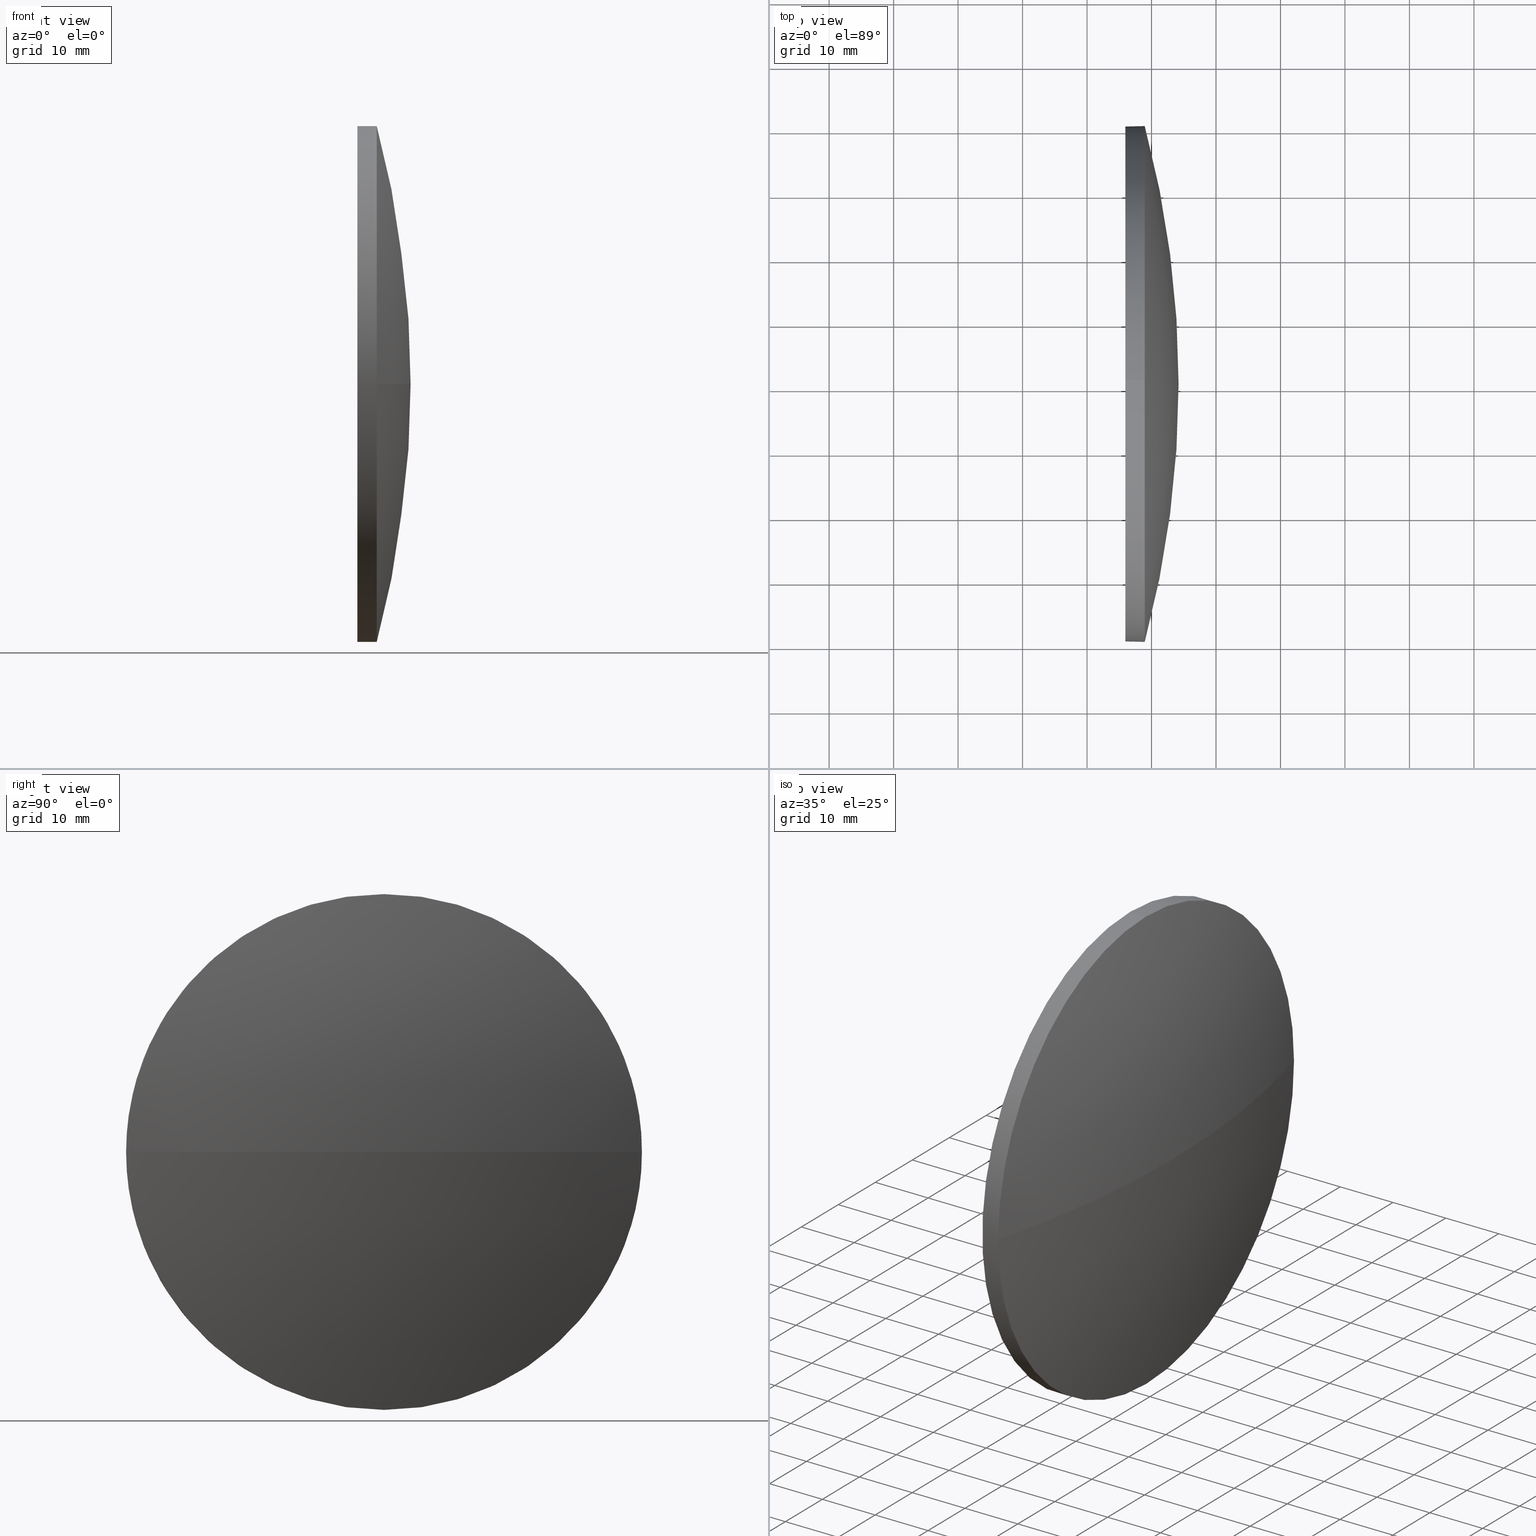
[diagram: canonical four-view strip — front | top / right | iso, engineering-drawing reading convention]
A machine part, canonical four-view strip (front | top / right | iso — engineering-drawing reading convention). The complete STEP part file that produces these views, byte-faithful:
ISO-10303-21;
HEADER;
FILE_DESCRIPTION (( 'STEP AP214' ),
    '1' );
FILE_NAME ('100165.STEP',
    '2019-05-17T02:56:49',
    ( '' ),
    ( '' ),
    'SwSTEP 2.0',
    'SolidWorks 2016',
    '' );
FILE_SCHEMA (( 'AUTOMOTIVE_DESIGN' ));
ENDSEC;

DATA;
#1 = DIRECTION ( 'NONE',  ( 0.0000000000000000000, 0.0000000000000000000, 1.000000000000000000 ) ) ;
#2 = AXIS2_PLACEMENT_3D ( 'NONE', #110, #141, #62 ) ;
#3 =( NAMED_UNIT ( * ) SI_UNIT ( $, .STERADIAN. ) SOLID_ANGLE_UNIT ( ) );
#4 = CARTESIAN_POINT ( 'NONE',  ( 225.9490942240209100, 130.4671098528244200, 0.0000000000000000000 ) ) ;
#5 = ORIENTED_EDGE ( 'NONE', *, *, #105, .T. ) ;
#6 = CARTESIAN_POINT ( 'NONE',  ( 79.19314184306821900, 130.4671098528244800, 0.0000000000000000000 ) ) ;
#7 = CLOSED_SHELL ( 'NONE', ( #92, #66, #179, #181, #91 ) ) ;
#8 = MANIFOLD_SOLID_BREP ( '��ת1', #7 ) ;
#9 = ORIENTED_EDGE ( 'NONE', *, *, #149, .T. ) ;
#10 = AXIS2_PLACEMENT_3D ( 'NONE', #29, #44, #157 ) ;
#11 =( LENGTH_UNIT ( ) NAMED_UNIT ( * ) SI_UNIT ( .MILLI., .METRE. ) );
#12 =( GEOMETRIC_REPRESENTATION_CONTEXT ( 3 ) GLOBAL_UNCERTAINTY_ASSIGNED_CONTEXT ( ( #63 ) ) GLOBAL_UNIT_ASSIGNED_CONTEXT ( ( #48, #139, #14 ) ) REPRESENTATION_CONTEXT ( 'NONE', 'WORKASPACE' ) );
#13 = DIRECTION ( 'NONE',  ( 0.0000000000000000000, 0.0000000000000000000, 1.000000000000000000 ) ) ;
#14 =( NAMED_UNIT ( * ) SI_UNIT ( $, .STERADIAN. ) SOLID_ANGLE_UNIT ( ) );
#15 = APPLICATION_PROTOCOL_DEFINITION ( 'draft international standard', 'automotive_design', 1998, #57 ) ;
#16 = CIRCLE ( 'NONE', #176, 40.00000000000000700 ) ;
#17 = DIRECTION ( 'NONE',  ( 0.0000000000000000000, -1.000000000000000000, -1.224646799147353200E-016 ) ) ;
#18 = DIRECTION ( 'NONE',  ( -1.000000000000000000, -0.0000000000000000000, -0.0000000000000000000 ) ) ;
#19 = AXIS2_PLACEMENT_3D ( 'NONE', #95, #152, #71 ) ;
#20 = STYLED_ITEM ( 'NONE', ( #124 ), #160 ) ;
#21 = UNCERTAINTY_MEASURE_WITH_UNIT (LENGTH_MEASURE( 1.000000000000000100E-005 ), #75, 'distance_accuracy_value', 'NONE');
#22 = CIRCLE ( 'NONE', #107, 40.00000000000000700 ) ;
#23 = ORIENTED_EDGE ( 'NONE', *, *, #78, .T. ) ;
#24 = SPHERICAL_SURFACE ( 'NONE', #19, 155.0059523809526600 ) ;
#25 = APPLICATION_CONTEXT ( 'automotive_design' ) ;
#26 = VERTEX_POINT ( 'NONE', #142 ) ;
#27 = DIRECTION ( 'NONE',  ( -1.000000000000000000, -0.0000000000000000000, -0.0000000000000000000 ) ) ;
#28 = SHAPE_DEFINITION_REPRESENTATION ( #134, #160 ) ;
#29 = CARTESIAN_POINT ( 'NONE',  ( 79.19314184306821900, 130.4671098528244800, 0.0000000000000000000 ) ) ;
#30 = AXIS2_PLACEMENT_3D ( 'NONE', #6, #34, #31 ) ;
#31 = DIRECTION ( 'NONE',  ( 0.0000000000000000000, -1.000000000000000000, 0.0000000000000000000 ) ) ;
#32 = FILL_AREA_STYLE ('',( #171 ) ) ;
#33 = CIRCLE ( 'NONE', #146, 40.00000000000000700 ) ;
#34 = DIRECTION ( 'NONE',  ( 0.0000000000000000000, 0.0000000000000000000, 1.000000000000000000 ) ) ;
#35 = EDGE_CURVE ( 'NONE', #150, #81, #65, .T. ) ;
#36 = DIRECTION ( 'NONE',  ( -1.000000000000000000, -0.0000000000000000000, -0.0000000000000000000 ) ) ;
#37 = ORIENTED_EDGE ( 'NONE', *, *, #164, .F. ) ;
#38 = DIRECTION ( 'NONE',  ( -1.000000000000000000, -0.0000000000000000000, -0.0000000000000000000 ) ) ;
#39 = AXIS2_PLACEMENT_3D ( 'NONE', #186, #27, #167 ) ;
#40 = ORIENTED_EDGE ( 'NONE', *, *, #35, .T. ) ;
#41 = ORIENTED_EDGE ( 'NONE', *, *, #159, .T. ) ;
#42 = MECHANICAL_DESIGN_GEOMETRIC_PRESENTATION_REPRESENTATION (  '', ( #20 ), #56 ) ;
#43 = ORIENTED_EDGE ( 'NONE', *, *, #136, .F. ) ;
#44 = DIRECTION ( 'NONE',  ( 0.0000000000000000000, 0.0000000000000000000, -1.000000000000000000 ) ) ;
#45 = SPHERICAL_SURFACE ( 'NONE', #30, 155.0059523809526600 ) ;
#46 = CARTESIAN_POINT ( 'NONE',  ( 234.1990942240208800, 130.4671098528244800, 0.0000000000000000000 ) ) ;
#47 = AXIS2_PLACEMENT_3D ( 'NONE', #102, #36, #126 ) ;
#48 =( LENGTH_UNIT ( ) NAMED_UNIT ( * ) SI_UNIT ( .MILLI., .METRE. ) );
#49 = SURFACE_STYLE_USAGE ( .BOTH. , #130 ) ;
#50 = CARTESIAN_POINT ( 'NONE',  ( 79.19314184306821900, 130.4671098528244800, 0.0000000000000000000 ) ) ;
#51 = CARTESIAN_POINT ( 'NONE',  ( 0.0000000000000000000, 0.0000000000000000000, 0.0000000000000000000 ) ) ;
#52 = ORIENTED_EDGE ( 'NONE', *, *, #94, .F. ) ;
#53 = PRODUCT_DEFINITION ( 'δ֪', '', #69, #148 ) ;
#54 = FACE_OUTER_BOUND ( 'NONE', #147, .T. ) ;
#55 = ORIENTED_EDGE ( 'NONE', *, *, #87, .F. ) ;
#56 =( GEOMETRIC_REPRESENTATION_CONTEXT ( 3 ) GLOBAL_UNCERTAINTY_ASSIGNED_CONTEXT ( ( #172 ) ) GLOBAL_UNIT_ASSIGNED_CONTEXT ( ( #11, #118, #137 ) ) REPRESENTATION_CONTEXT ( 'NONE', 'WORKASPACE' ) );
#57 = APPLICATION_CONTEXT ( 'automotive_design' ) ;
#58 = DIRECTION ( 'NONE',  ( 0.0000000000000000000, 0.0000000000000000000, 1.000000000000000000 ) ) ;
#59 = CARTESIAN_POINT ( 'NONE',  ( 228.9490942240209100, 130.4671098528244200, 0.0000000000000000000 ) ) ;
#60 = DIRECTION ( 'NONE',  ( -1.000000000000000000, -0.0000000000000000000, -0.0000000000000000000 ) ) ;
#61 = CIRCLE ( 'NONE', #128, 40.00000000000000700 ) ;
#62 = DIRECTION ( 'NONE',  ( 0.0000000000000000000, 0.0000000000000000000, 1.000000000000000000 ) ) ;
#63 = UNCERTAINTY_MEASURE_WITH_UNIT (LENGTH_MEASURE( 1.000000000000000100E-005 ), #48, 'distance_accuracy_value', 'NONE');
#64 = AXIS2_PLACEMENT_3D ( 'NONE', #72, #138, #114 ) ;
#65 = LINE ( 'NONE', #140, #135 ) ;
#66 = ADVANCED_FACE ( 'NONE', ( #170 ), #24, .T. ) ;
#67 = EDGE_LOOP ( 'NONE', ( #89, #9, #161, #55 ) ) ;
#68 = ORIENTED_EDGE ( 'NONE', *, *, #35, .F. ) ;
#69 = PRODUCT_DEFINITION_FORMATION_WITH_SPECIFIED_SOURCE ( '�κ�', '', #111, .NOT_KNOWN. ) ;
#70 = DIRECTION ( 'NONE',  ( 0.0000000000000000000, 0.0000000000000000000, 1.000000000000000000 ) ) ;
#71 = DIRECTION ( 'NONE',  ( 0.0000000000000000000, -1.000000000000000000, 0.0000000000000000000 ) ) ;
#72 = CARTESIAN_POINT ( 'NONE',  ( 225.9490942240209100, 130.4671098528244200, 0.0000000000000000000 ) ) ;
#73 = EDGE_LOOP ( 'NONE', ( #41, #153 ) ) ;
#74 = CARTESIAN_POINT ( 'NONE',  ( 228.9490942240209100, 130.4671098528244200, -40.00000000000000700 ) ) ;
#75 =( LENGTH_UNIT ( ) NAMED_UNIT ( * ) SI_UNIT ( .MILLI., .METRE. ) );
#76 = CARTESIAN_POINT ( 'NONE',  ( 228.9490942240209100, 130.4671098528244200, 40.00000000000000700 ) ) ;
#77 = AXIS2_PLACEMENT_3D ( 'NONE', #50, #101, #17 ) ;
#78 = EDGE_CURVE ( 'NONE', #150, #145, #61, .T. ) ;
#79 = COLOUR_RGB ( '',1.000000000000000000, 1.000000000000000000, 1.000000000000000000 ) ;
#80 =( GEOMETRIC_REPRESENTATION_CONTEXT ( 3 ) GLOBAL_UNCERTAINTY_ASSIGNED_CONTEXT ( ( #21 ) ) GLOBAL_UNIT_ASSIGNED_CONTEXT ( ( #75, #173, #3 ) ) REPRESENTATION_CONTEXT ( 'NONE', 'WORKASPACE' ) );
#81 = VERTEX_POINT ( 'NONE', #117 ) ;
#82 = CIRCLE ( 'NONE', #2, 40.00000000000000700 ) ;
#83 = DIRECTION ( 'NONE',  ( -1.000000000000000000, -0.0000000000000000000, -0.0000000000000000000 ) ) ;
#84 = ORIENTED_EDGE ( 'NONE', *, *, #151, .F. ) ;
#85 = CARTESIAN_POINT ( 'NONE',  ( 228.9490942240209100, 130.4671098528244200, 0.0000000000000000000 ) ) ;
#86 = PRODUCT_RELATED_PRODUCT_CATEGORY ( 'part', '', ( #111 ) ) ;
#87 = EDGE_CURVE ( 'NONE', #125, #150, #132, .T. ) ;
#88 = FACE_OUTER_BOUND ( 'NONE', #106, .T. ) ;
#89 = ORIENTED_EDGE ( 'NONE', *, *, #105, .F. ) ;
#90 = CYLINDRICAL_SURFACE ( 'NONE', #39, 40.00000000000000700 ) ;
#91 = ADVANCED_FACE ( 'NONE', ( #93 ), #185, .F. ) ;
#92 = ADVANCED_FACE ( 'NONE', ( #54 ), #90, .T. ) ;
#93 = FACE_OUTER_BOUND ( 'NONE', #73, .T. ) ;
#94 = EDGE_CURVE ( 'NONE', #121, #125, #22, .T. ) ;
#95 = CARTESIAN_POINT ( 'NONE',  ( 79.19314184306821900, 130.4671098528244800, 0.0000000000000000000 ) ) ;
#96 = DIRECTION ( 'NONE',  ( -1.000000000000000000, -0.0000000000000000000, -0.0000000000000000000 ) ) ;
#97 = CARTESIAN_POINT ( 'NONE',  ( 228.9490942240208800, 170.4671098528244200, 4.898587196589408300E-015 ) ) ;
#98 = FILL_AREA_STYLE_COLOUR ( '', #122 ) ;
#99 = DIRECTION ( 'NONE',  ( -1.000000000000000000, -0.0000000000000000000, -0.0000000000000000000 ) ) ;
#100 = CYLINDRICAL_SURFACE ( 'NONE', #47, 40.00000000000000700 ) ;
#101 = DIRECTION ( 'NONE',  ( 0.0000000000000000000, -1.224646799147353200E-016, 1.000000000000000000 ) ) ;
#102 = CARTESIAN_POINT ( 'NONE',  ( 217.9945825323866300, 130.4671098528244200, 0.0000000000000000000 ) ) ;
#103 = VERTEX_POINT ( 'NONE', #46 ) ;
#104 = PRESENTATION_LAYER_ASSIGNMENT (  '', '', ( #20 ) ) ;
#105 = EDGE_CURVE ( 'NONE', #103, #125, #163, .T. ) ;
#106 = EDGE_LOOP ( 'NONE', ( #84, #115, #183, #40, #43 ) ) ;
#107 = AXIS2_PLACEMENT_3D ( 'NONE', #85, #60, #1 ) ;
#108 = ORIENTED_EDGE ( 'NONE', *, *, #164, .T. ) ;
#109 = PRODUCT_CONTEXT ( 'NONE', #57, 'mechanical' ) ;
#110 = CARTESIAN_POINT ( 'NONE',  ( 228.9490942240209100, 130.4671098528244200, 0.0000000000000000000 ) ) ;
#111 = PRODUCT ( '100165', '100165', '', ( #109 ) ) ;
#112 = FACE_OUTER_BOUND ( 'NONE', #166, .T. ) ;
#113 = SURFACE_SIDE_STYLE ('',( #177 ) ) ;
#114 = DIRECTION ( 'NONE',  ( 0.0000000000000000000, 0.0000000000000000000, -1.000000000000000000 ) ) ;
#115 = ORIENTED_EDGE ( 'NONE', *, *, #94, .T. ) ;
#116 = FILL_AREA_STYLE ('',( #98 ) ) ;
#117 = CARTESIAN_POINT ( 'NONE',  ( 225.9490942240209100, 130.4671098528244200, 40.00000000000000700 ) ) ;
#118 =( NAMED_UNIT ( * ) PLANE_ANGLE_UNIT ( ) SI_UNIT ( $, .RADIAN. ) );
#119 = MECHANICAL_DESIGN_GEOMETRIC_PRESENTATION_REPRESENTATION (  '', ( #178 ), #12 ) ;
#120 = DIRECTION ( 'NONE',  ( 0.0000000000000000000, 0.0000000000000000000, 1.000000000000000000 ) ) ;
#121 = VERTEX_POINT ( 'NONE', #74 ) ;
#122 = COLOUR_RGB ( '',1.000000000000000000, 1.000000000000000000, 1.000000000000000000 ) ;
#123 = VECTOR ( 'NONE', #38, 1000.000000000000000 ) ;
#124 = PRESENTATION_STYLE_ASSIGNMENT (( #49 ) ) ;
#125 = VERTEX_POINT ( 'NONE', #129 ) ;
#126 = DIRECTION ( 'NONE',  ( 0.0000000000000000000, 0.0000000000000000000, 1.000000000000000000 ) ) ;
#127 = LINE ( 'NONE', #143, #123 ) ;
#128 = AXIS2_PLACEMENT_3D ( 'NONE', #59, #96, #13 ) ;
#129 = CARTESIAN_POINT ( 'NONE',  ( 228.9490942240208800, 90.46710985282446400, 0.0000000000000000000 ) ) ;
#130 = SURFACE_SIDE_STYLE ('',( #182 ) ) ;
#131 = ORIENTED_EDGE ( 'NONE', *, *, #149, .F. ) ;
#132 = CIRCLE ( 'NONE', #144, 40.00000000000000700 ) ;
#133 = PRESENTATION_STYLE_ASSIGNMENT (( #168 ) ) ;
#134 = PRODUCT_DEFINITION_SHAPE ( 'NONE', 'NONE',  #53 ) ;
#135 = VECTOR ( 'NONE', #83, 1000.000000000000000 ) ;
#136 = EDGE_CURVE ( 'NONE', #26, #81, #33, .T. ) ;
#137 =( NAMED_UNIT ( * ) SI_UNIT ( $, .STERADIAN. ) SOLID_ANGLE_UNIT ( ) );
#138 = DIRECTION ( 'NONE',  ( 1.000000000000000000, 0.0000000000000000000, 0.0000000000000000000 ) ) ;
#139 =( NAMED_UNIT ( * ) PLANE_ANGLE_UNIT ( ) SI_UNIT ( $, .RADIAN. ) );
#140 = CARTESIAN_POINT ( 'NONE',  ( 217.9945825323866300, 130.4671098528244200, 40.00000000000000700 ) ) ;
#141 = DIRECTION ( 'NONE',  ( -1.000000000000000000, -0.0000000000000000000, -0.0000000000000000000 ) ) ;
#142 = CARTESIAN_POINT ( 'NONE',  ( 225.9490942240209100, 130.4671098528244200, -40.00000000000000700 ) ) ;
#143 = CARTESIAN_POINT ( 'NONE',  ( 217.9945825323866300, 130.4671098528244200, -40.00000000000000700 ) ) ;
#144 = AXIS2_PLACEMENT_3D ( 'NONE', #165, #154, #70 ) ;
#145 = VERTEX_POINT ( 'NONE', #97 ) ;
#146 = AXIS2_PLACEMENT_3D ( 'NONE', #4, #99, #58 ) ;
#147 = EDGE_LOOP ( 'NONE', ( #108, #180, #175, #68, #23 ) ) ;
#148 = PRODUCT_DEFINITION_CONTEXT ( 'detailed design', #25, 'design' ) ;
#149 = EDGE_CURVE ( 'NONE', #103, #145, #162, .T. ) ;
#150 = VERTEX_POINT ( 'NONE', #76 ) ;
#151 = EDGE_CURVE ( 'NONE', #121, #26, #127, .T. ) ;
#152 = DIRECTION ( 'NONE',  ( 0.0000000000000000000, 0.0000000000000000000, 1.000000000000000000 ) ) ;
#153 = ORIENTED_EDGE ( 'NONE', *, *, #136, .T. ) ;
#154 = DIRECTION ( 'NONE',  ( -1.000000000000000000, -0.0000000000000000000, -0.0000000000000000000 ) ) ;
#155 = AXIS2_PLACEMENT_3D ( 'NONE', #51, #156, #169 ) ;
#156 = DIRECTION ( 'NONE',  ( 0.0000000000000000000, 0.0000000000000000000, 1.000000000000000000 ) ) ;
#157 = DIRECTION ( 'NONE',  ( -1.000000000000000000, 0.0000000000000000000, 0.0000000000000000000 ) ) ;
#158 = APPLICATION_PROTOCOL_DEFINITION ( 'draft international standard', 'automotive_design', 1998, #25 ) ;
#159 = EDGE_CURVE ( 'NONE', #81, #26, #16, .T. ) ;
#160 = ADVANCED_BREP_SHAPE_REPRESENTATION ( '100165', ( #8, #155 ), #80 ) ;
#161 = ORIENTED_EDGE ( 'NONE', *, *, #78, .F. ) ;
#162 = CIRCLE ( 'NONE', #77, 155.0059523809526600 ) ;
#163 = CIRCLE ( 'NONE', #10, 155.0059523809526600 ) ;
#164 = EDGE_CURVE ( 'NONE', #145, #121, #82, .T. ) ;
#165 = CARTESIAN_POINT ( 'NONE',  ( 228.9490942240209100, 130.4671098528244200, 0.0000000000000000000 ) ) ;
#166 = EDGE_LOOP ( 'NONE', ( #131, #5, #52, #37 ) ) ;
#167 = DIRECTION ( 'NONE',  ( 0.0000000000000000000, 0.0000000000000000000, 1.000000000000000000 ) ) ;
#168 = SURFACE_STYLE_USAGE ( .BOTH. , #113 ) ;
#169 = DIRECTION ( 'NONE',  ( 1.000000000000000000, 0.0000000000000000000, 0.0000000000000000000 ) ) ;
#170 = FACE_OUTER_BOUND ( 'NONE', #67, .T. ) ;
#171 = FILL_AREA_STYLE_COLOUR ( '', #79 ) ;
#172 = UNCERTAINTY_MEASURE_WITH_UNIT (LENGTH_MEASURE( 1.000000000000000100E-005 ), #11, 'distance_accuracy_value', 'NONE');
#173 =( NAMED_UNIT ( * ) PLANE_ANGLE_UNIT ( ) SI_UNIT ( $, .RADIAN. ) );
#174 = CARTESIAN_POINT ( 'NONE',  ( 225.9490942240209100, 130.4671098528244200, 0.0000000000000000000 ) ) ;
#175 = ORIENTED_EDGE ( 'NONE', *, *, #159, .F. ) ;
#176 = AXIS2_PLACEMENT_3D ( 'NONE', #174, #18, #120 ) ;
#177 = SURFACE_STYLE_FILL_AREA ( #32 ) ;
#178 = STYLED_ITEM ( 'NONE', ( #133 ), #8 ) ;
#179 = ADVANCED_FACE ( 'NONE', ( #112 ), #45, .T. ) ;
#180 = ORIENTED_EDGE ( 'NONE', *, *, #151, .T. ) ;
#181 = ADVANCED_FACE ( 'NONE', ( #88 ), #100, .T. ) ;
#182 = SURFACE_STYLE_FILL_AREA ( #116 ) ;
#183 = ORIENTED_EDGE ( 'NONE', *, *, #87, .T. ) ;
#184 = PRESENTATION_LAYER_ASSIGNMENT (  '', '', ( #178 ) ) ;
#185 = PLANE ( 'NONE',  #64 ) ;
#186 = CARTESIAN_POINT ( 'NONE',  ( 217.9945825323866300, 130.4671098528244200, 0.0000000000000000000 ) ) ;
ENDSEC;
END-ISO-10303-21;
